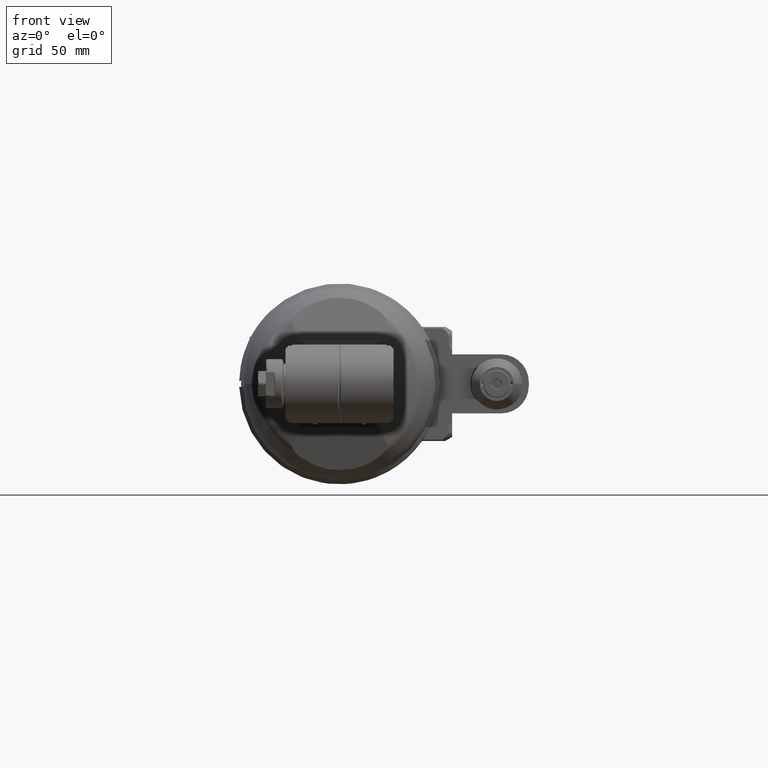
[diagram: clean part render]
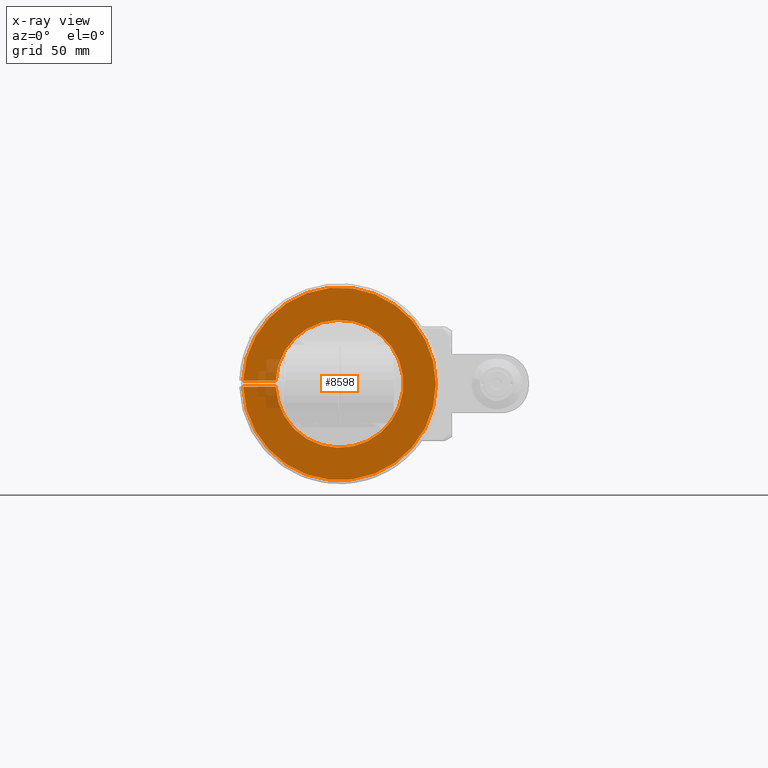
[diagram: x-ray — body ghosted, one internal face saturated and labeled with its STEP entity id]
A machine part, front view, then the same camera in x-ray: the body is ghosted and one INTERNAL B-rep face — a face not visible from any outside direction — is saturated and labeled: STEP entity #8598.
In plain terms, the highlighted planar face has unit normal (0, -1, 0).
Its self-contained STEP definition (entity closure, byte-faithful):
#329=PLANE('',#9267);
#683=FACE_OUTER_BOUND('',#1220,.T.);
#1220=EDGE_LOOP('',(#5850,#5851,#5852,#5853));
#1825=CIRCLE('',#9263,49.);
#1828=CIRCLE('',#9268,32.5);
#2411=LINE('',#13007,#3010);
#2416=LINE('',#13041,#3015);
#3010=VECTOR('',#10299,16.51166927349);
#3015=VECTOR('',#10310,16.51166927349);
#3623=VERTEX_POINT('',#12996);
#3624=VERTEX_POINT('',#13000);
#3625=VERTEX_POINT('',#13006);
#3633=VERTEX_POINT('',#13040);
#4498=EDGE_CURVE('',#3624,#3623,#1825,.T.);
#4500=EDGE_CURVE('',#3625,#3624,#2411,.T.);
#4509=EDGE_CURVE('',#3623,#3633,#2416,.T.);
#4510=EDGE_CURVE('',#3633,#3625,#1828,.T.);
#5850=ORIENTED_EDGE('',*,*,#4498,.T.);
#5851=ORIENTED_EDGE('',*,*,#4509,.T.);
#5852=ORIENTED_EDGE('',*,*,#4510,.T.);
#5853=ORIENTED_EDGE('',*,*,#4500,.T.);
#8598=ADVANCED_FACE('',(#683),#329,.T.);
#9263=AXIS2_PLACEMENT_3D('',#13001,#10295,#10296);
#9267=AXIS2_PLACEMENT_3D('',#13039,#10308,#10309);
#9268=AXIS2_PLACEMENT_3D('',#13042,#10311,#10312);
#10295=DIRECTION('center_axis',(1.,0.,0.));
#10296=DIRECTION('ref_axis',(0.,1.,0.));
#10299=DIRECTION('',(0.,-1.,0.));
#10308=DIRECTION('center_axis',(1.,0.,0.));
#10309=DIRECTION('ref_axis',(0.,-1.,0.));
#10310=DIRECTION('',(0.,1.,0.));
#10311=DIRECTION('center_axis',(-1.,0.,0.));
#10312=DIRECTION('ref_axis',(0.,-0.998934343430642,0.0461538461538519));
#12996=CARTESIAN_POINT('',(-12.,-48.97703543499,1.5));
#13000=CARTESIAN_POINT('',(-12.,-48.97703543499,-1.5));
#13001=CARTESIAN_POINT('Origin',(-12.,0.,0.));
#13006=CARTESIAN_POINT('',(-12.,-32.4653661615,-1.5));
#13007=CARTESIAN_POINT('',(-12.,-32.4653661615,-1.5));
#13039=CARTESIAN_POINT('Origin',(-12.,-49.13074005203,0.));
#13040=CARTESIAN_POINT('',(-12.,-32.4653661615,1.5));
#13041=CARTESIAN_POINT('',(-12.,-48.97703543499,1.5));
#13042=CARTESIAN_POINT('Origin',(-12.,0.,0.));